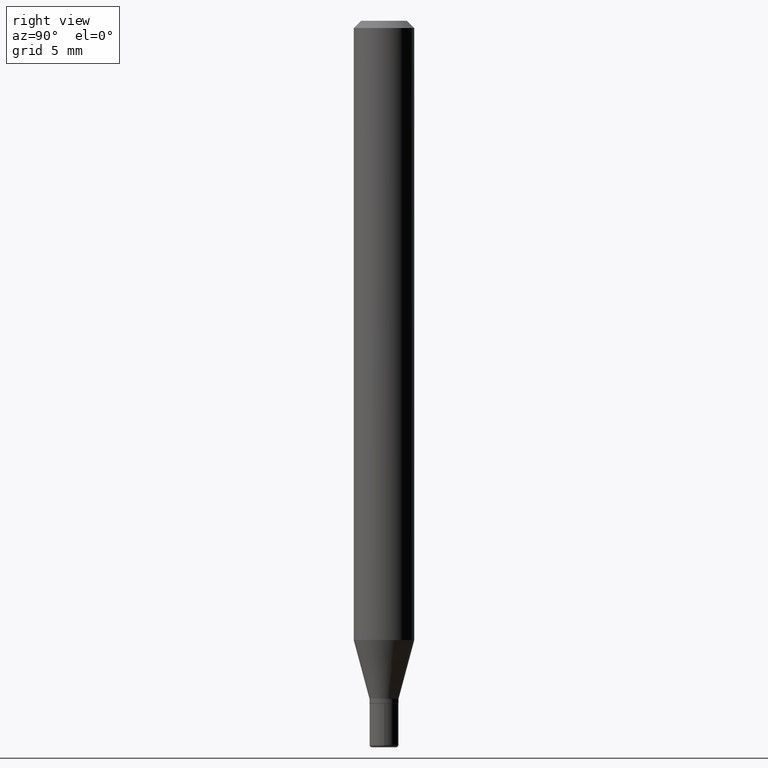
[diagram: clean part render]
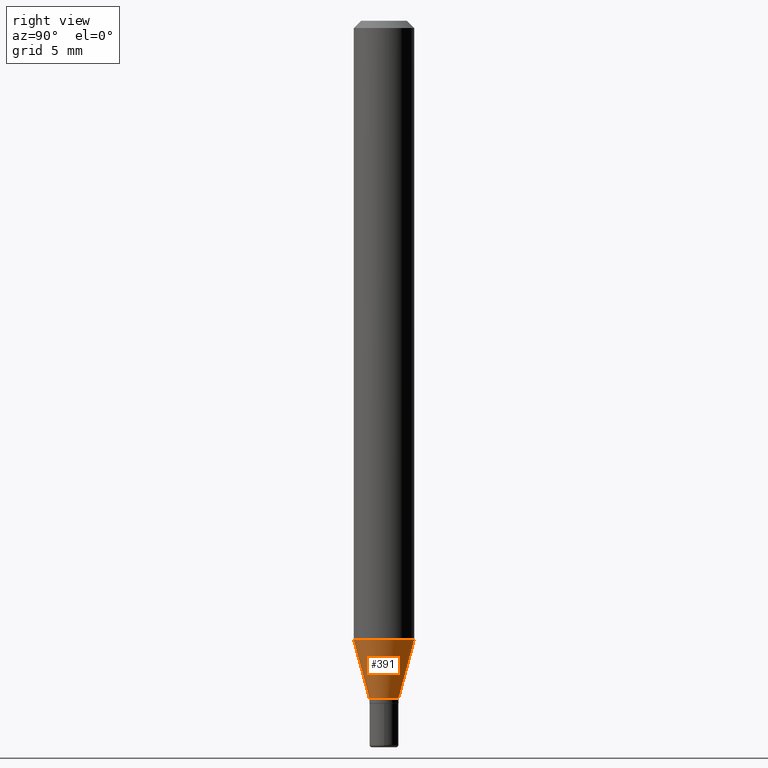
[diagram: same view with one face highlighted and labeled with its STEP entity id]
A machine part, right view. The second image highlights one B-rep face of the part: STEP entity #391.
In plain terms, the highlighted conical surface has half-angle 15 deg.
Its self-contained STEP definition (entity closure, byte-faithful):
#10 = CIRCLE ( 'NONE', #477, 0.06250000000000000000 ) ;
#31 = CONICAL_SURFACE ( 'NONE', #419, 0.03000000000000009950, 0.2617993877991495189 ) ;
#33 = ORIENTED_EDGE ( 'NONE', *, *, #408, .F. ) ;
#96 = DIRECTION ( 'NONE',  ( -6.982962677686265922E-15, -1.000000000000000000, 0.000000000000000000 ) ) ;
#112 = DIRECTION ( 'NONE',  ( -6.982962677686265922E-15, -1.000000000000000000, 0.000000000000000000 ) ) ;
#147 = DIRECTION ( 'NONE',  ( -2.445577633895310376E-29, 3.491325491368088236E-15, 1.000000000000000000 ) ) ;
#152 = DIRECTION ( 'NONE',  ( -1.807323732225324617E-15, -0.2588190451025174088, 0.9659258262890690894 ) ) ;
#154 = CARTESIAN_POINT ( 'NONE',  ( -2.094888803305543958E-16, -0.03000000000000498449, -1.400000000000000355 ) ) ;
#213 = EDGE_LOOP ( 'NONE', ( #263, #226, #279, #33 ) ) ;
#216 = AXIS2_PLACEMENT_3D ( 'NONE', #479, #147, #112 ) ;
#226 = ORIENTED_EDGE ( 'NONE', *, *, #303, .T. ) ;
#238 = EDGE_CURVE ( 'NONE', #316, #242, #513, .T. ) ;
#242 = VERTEX_POINT ( 'NONE', #389 ) ;
#254 = VECTOR ( 'NONE', #302, 39.37007874015748854 ) ;
#256 = CARTESIAN_POINT ( 'NONE',  ( 4.440892098500935790E-16, 0.06249999999999550360, -1.278708348754012514 ) ) ;
#263 = ORIENTED_EDGE ( 'NONE', *, *, #238, .T. ) ;
#268 = VERTEX_POINT ( 'NONE', #256 ) ;
#275 = CARTESIAN_POINT ( 'NONE',  ( 3.127180537988016728E-29, -4.464387054030078647E-15, -1.278708348754012292 ) ) ;
#279 = ORIENTED_EDGE ( 'NONE', *, *, #496, .F. ) ;
#300 = CARTESIAN_POINT ( 'NONE',  ( 2.131628207280649550E-16, 0.02999999999999521105, -1.400000000000000355 ) ) ;
#302 = DIRECTION ( 'NONE',  ( 1.839019923739594793E-15, 0.2588190451025241812, 0.9659258262890673130 ) ) ;
#303 = EDGE_CURVE ( 'NONE', #242, #268, #430, .T. ) ;
#304 = DIRECTION ( 'NONE',  ( -2.445577633895310376E-29, 3.491325491368088236E-15, 1.000000000000000000 ) ) ;
#315 = CARTESIAN_POINT ( 'NONE',  ( -4.364351673553605094E-16, -0.06250000000000449640, -1.278708348754012070 ) ) ;
#316 = VERTEX_POINT ( 'NONE', #511 ) ;
#383 = FACE_OUTER_BOUND ( 'NONE', #213, .T. ) ;
#389 = CARTESIAN_POINT ( 'NONE',  ( 3.286260152890794642E-16, 0.02999999999999521105, -1.400000000000000355 ) ) ;
#391 = ADVANCED_FACE ( 'NONE', ( #383 ), #31, .T. ) ;
#393 = CARTESIAN_POINT ( 'NONE',  ( 3.423808687453435536E-29, -4.887855687915325108E-15, -1.400000000000000355 ) ) ;
#398 = DIRECTION ( 'NONE',  ( -6.982962677686265922E-15, -1.000000000000000000, 4.370956789862821150E-15 ) ) ;
#408 = EDGE_CURVE ( 'NONE', #316, #508, #504, .T. ) ;
#419 = AXIS2_PLACEMENT_3D ( 'NONE', #393, #304, #96 ) ;
#430 = LINE ( 'NONE', #300, #254 ) ;
#477 = AXIS2_PLACEMENT_3D ( 'NONE', #275, #518, #398 ) ;
#479 = CARTESIAN_POINT ( 'NONE',  ( 3.423808687453435536E-29, -4.887855687915325108E-15, -1.400000000000000355 ) ) ;
#484 = VECTOR ( 'NONE', #152, 39.37007874015748854 ) ;
#496 = EDGE_CURVE ( 'NONE', #508, #268, #10, .T. ) ;
#504 = LINE ( 'NONE', #154, #484 ) ;
#508 = VERTEX_POINT ( 'NONE', #315 ) ;
#511 = CARTESIAN_POINT ( 'NONE',  ( -2.094888803305543958E-16, -0.03000000000000498449, -1.400000000000000355 ) ) ;
#513 = CIRCLE ( 'NONE', #216, 0.03000000000000009950 ) ;
#518 = DIRECTION ( 'NONE',  ( -2.445577633895310376E-29, 3.491325491368088236E-15, 1.000000000000000000 ) ) ;